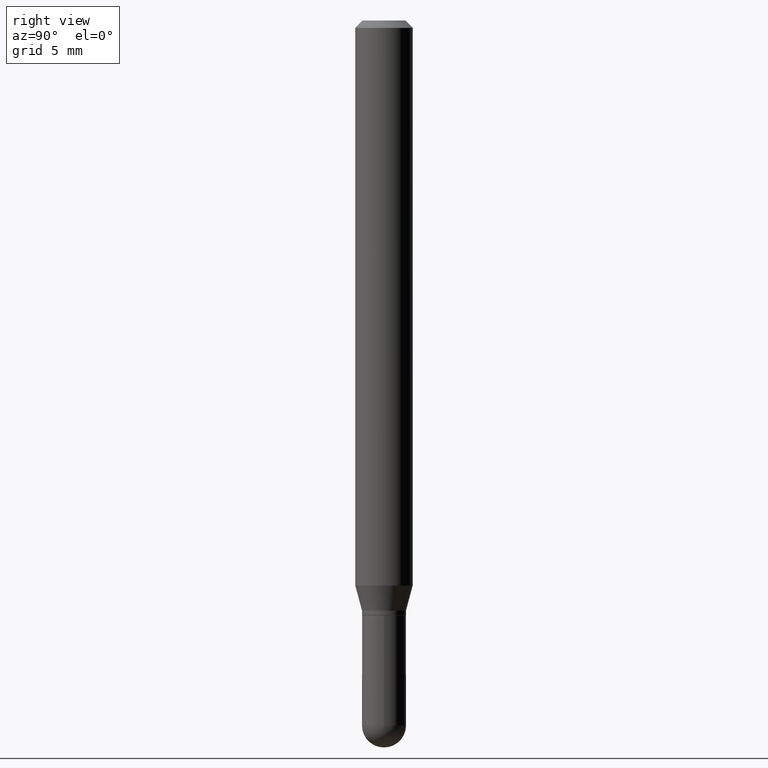
[diagram: clean part render]
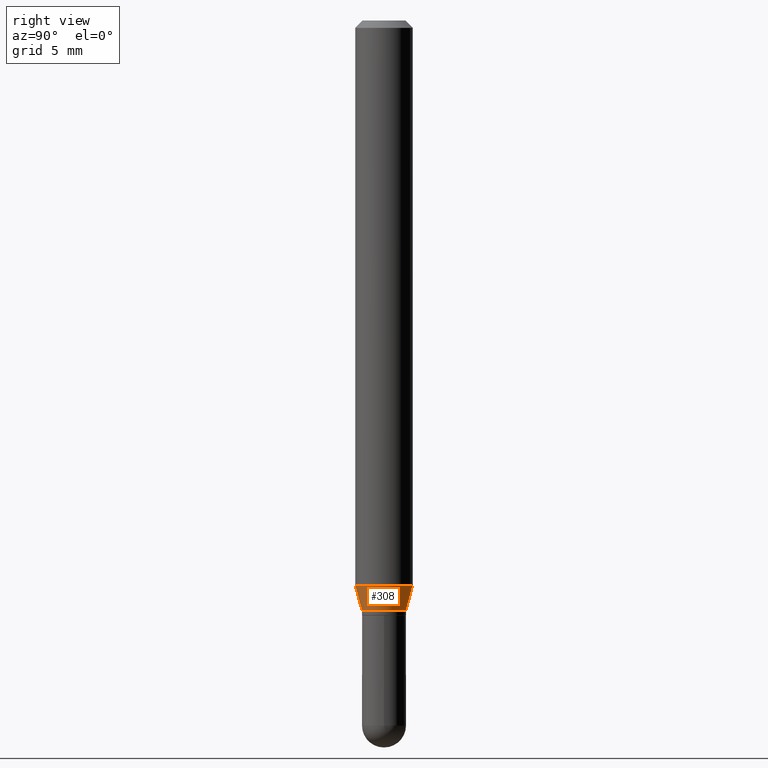
[diagram: same view with one face highlighted and labeled with its STEP entity id]
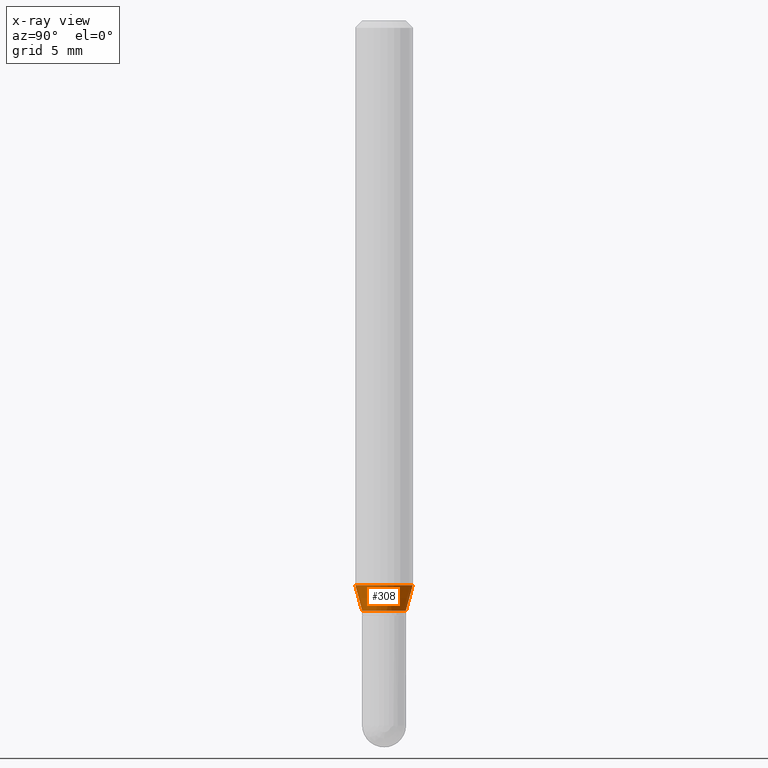
[diagram: x-ray of the same camera — body ghosted, the highlighted face saturated]
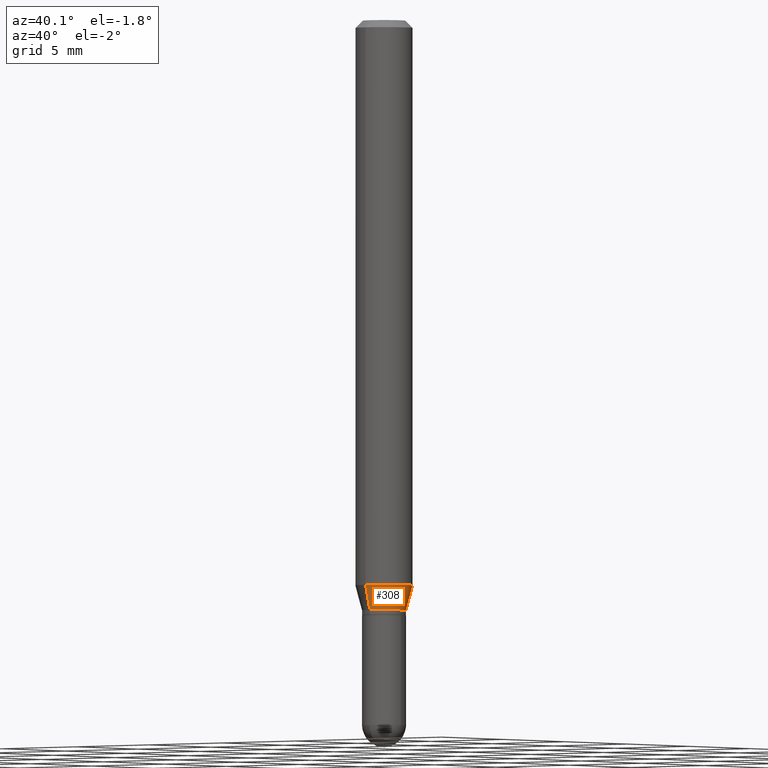
[diagram: same view with one face highlighted and labeled with its STEP entity id]
A machine part, right view. The second image highlights one B-rep face of the part: STEP entity #308.
The next image is the same camera in x-ray: the body ghosted, the highlighted face saturated — about 0% of this face is hidden behind the body in this view.
A second angle (auxiliary view) of the same face is appended — the face is thin or edge-on in the first view.
In plain terms, the highlighted conical surface has half-angle 15 deg.
Its self-contained STEP definition (entity closure, byte-faithful):
#13 = AXIS2_PLACEMENT_3D ( 'NONE', #440, #385, #271 ) ;
#24 = CIRCLE ( 'NONE', #387, 0.05904999999999999832 ) ;
#28 = CARTESIAN_POINT ( 'NONE',  ( 2.969083189859647700E-29, -4.238950909669533364E-15, -1.214099999999999957 ) ) ;
#31 = CARTESIAN_POINT ( 'NONE',  ( 2.843590579612342672E-29, -4.059785497200991019E-15, -1.162784301395928477 ) ) ;
#34 = DIRECTION ( 'NONE',  ( -6.982962677686265133E-15, -1.000000000000000000, 3.015284761218829434E-15 ) ) ;
#36 = CONICAL_SURFACE ( 'NONE', #399, 0.04530000000000006244, 0.2617993877991508511 ) ;
#57 = CIRCLE ( 'NONE', #13, 0.04530000000000006244 ) ;
#60 = CARTESIAN_POINT ( 'NONE',  ( 3.218758592993554101E-16, 0.04529999999999581584, -1.214100000000000179 ) ) ;
#112 = CARTESIAN_POINT ( 'NONE',  ( -3.163282092991585987E-16, -0.04530000000000430210, -1.214099999999999957 ) ) ;
#115 = LINE ( 'NONE', #112, #428 ) ;
#120 = VECTOR ( 'NONE', #331, 39.37007874015748854 ) ;
#126 = LINE ( 'NONE', #60, #120 ) ;
#131 = ORIENTED_EDGE ( 'NONE', *, *, #484, .T. ) ;
#166 = CARTESIAN_POINT ( 'NONE',  ( -3.163282092991585987E-16, -0.04530000000000430210, -1.214099999999999957 ) ) ;
#193 = CARTESIAN_POINT ( 'NONE',  ( -4.123439461173455844E-16, -0.05905000000000406452, -1.162784301395928255 ) ) ;
#227 = DIRECTION ( 'NONE',  ( -2.445501350679225311E-29, 3.491434733275292845E-15, 1.000000000000000000 ) ) ;
#229 = FACE_OUTER_BOUND ( 'NONE', #390, .T. ) ;
#271 = DIRECTION ( 'NONE',  ( -6.982962677686265133E-15, -1.000000000000000000, 3.015284761218829434E-15 ) ) ;
#275 = DIRECTION ( 'NONE',  ( -1.807323732225333689E-15, -0.2588190451025186856, 0.9659258262890687563 ) ) ;
#277 = EDGE_CURVE ( 'NONE', #425, #451, #24, .T. ) ;
#288 = EDGE_CURVE ( 'NONE', #461, #425, #115, .T. ) ;
#292 = EDGE_CURVE ( 'NONE', #461, #324, #57, .T. ) ;
#304 = ORIENTED_EDGE ( 'NONE', *, *, #288, .F. ) ;
#308 = ADVANCED_FACE ( 'NONE', ( #229 ), #36, .T. ) ;
#314 = DIRECTION ( 'NONE',  ( -2.445501350679225311E-29, 3.491434733275292845E-15, 1.000000000000000000 ) ) ;
#324 = VERTEX_POINT ( 'NONE', #448 ) ;
#331 = DIRECTION ( 'NONE',  ( 1.839019923739603865E-15, 0.2588190451025254579, 0.9659258262890669799 ) ) ;
#333 = ORIENTED_EDGE ( 'NONE', *, *, #292, .T. ) ;
#359 = DIRECTION ( 'NONE',  ( -6.982962677686265922E-15, -1.000000000000000000, 4.626330217890369336E-15 ) ) ;
#385 = DIRECTION ( 'NONE',  ( -2.445501350679225311E-29, 3.491434733275292845E-15, 1.000000000000000000 ) ) ;
#387 = AXIS2_PLACEMENT_3D ( 'NONE', #31, #314, #359 ) ;
#390 = EDGE_LOOP ( 'NONE', ( #333, #131, #454, #304 ) ) ;
#399 = AXIS2_PLACEMENT_3D ( 'NONE', #28, #227, #34 ) ;
#425 = VERTEX_POINT ( 'NONE', #193 ) ;
#428 = VECTOR ( 'NONE', #275, 39.37007874015748854 ) ;
#440 = CARTESIAN_POINT ( 'NONE',  ( 2.969083189859647700E-29, -4.238950909669533364E-15, -1.214099999999999957 ) ) ;
#445 = CARTESIAN_POINT ( 'NONE',  ( 4.195754854663673989E-16, 0.05904999999999592519, -1.162784301395928699 ) ) ;
#448 = CARTESIAN_POINT ( 'NONE',  ( 3.707256723828616017E-16, 0.04529999999999581584, -1.214100000000000179 ) ) ;
#451 = VERTEX_POINT ( 'NONE', #445 ) ;
#454 = ORIENTED_EDGE ( 'NONE', *, *, #277, .F. ) ;
#461 = VERTEX_POINT ( 'NONE', #166 ) ;
#484 = EDGE_CURVE ( 'NONE', #324, #451, #126, .T. ) ;